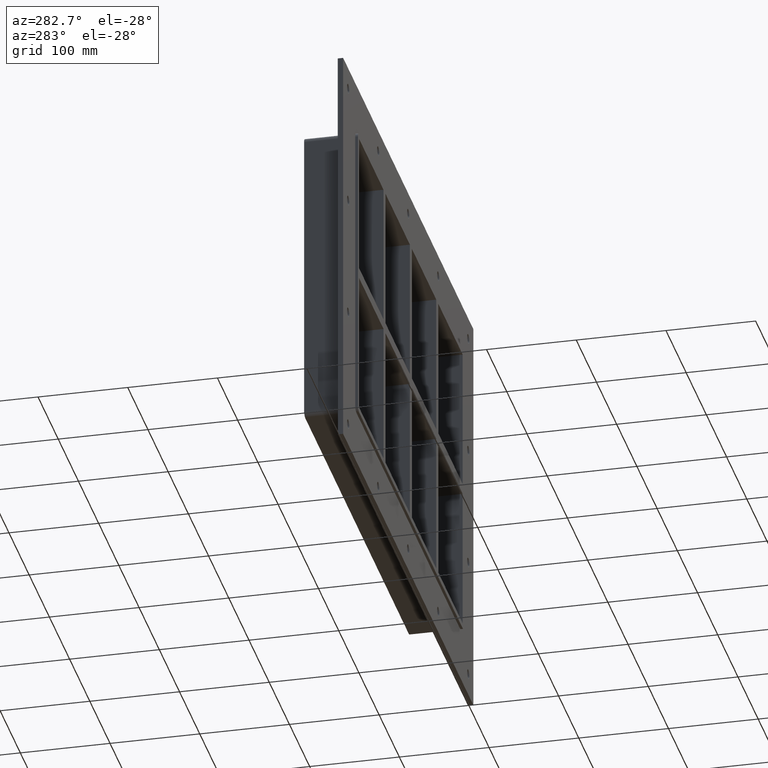
[diagram: clean part render]
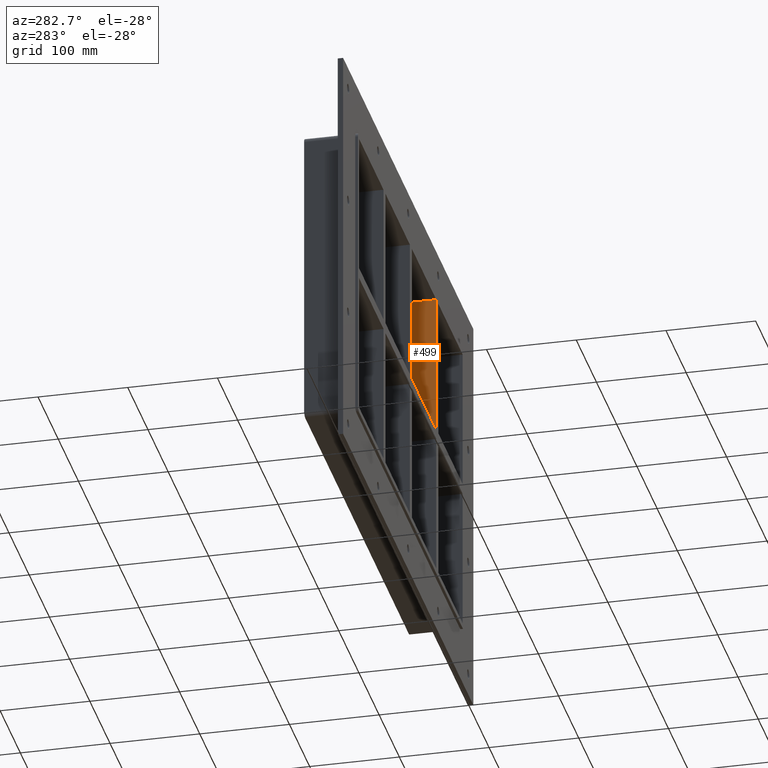
[diagram: same view with one face highlighted and labeled with its STEP entity id]
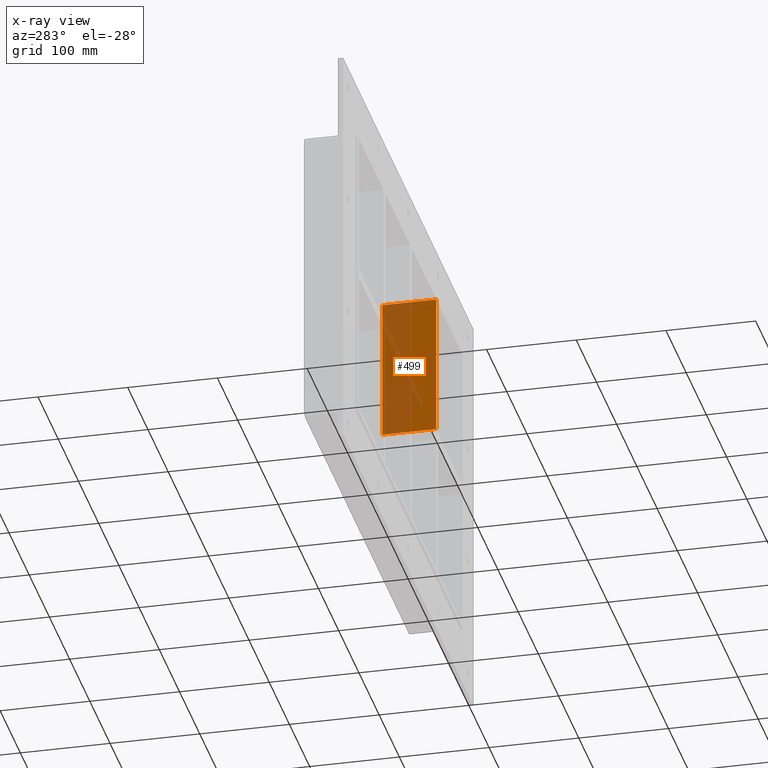
[diagram: x-ray of the same camera — body ghosted, the highlighted face saturated]
A machine part, auxiliary view. The second image highlights one B-rep face of the part: STEP entity #499.
The next image is the same camera in x-ray: the body ghosted, the highlighted face saturated — about 58% of this face is hidden behind the body in this view.
In plain terms, the highlighted planar face has unit normal (-1, 0, 0).
Its self-contained STEP definition (entity closure, byte-faithful):
#460=CARTESIAN_POINT('',(125.49999999999798,-3.0,-165.50000000000006));
#461=DIRECTION('',(-1.0,0.0,0.0));
#462=DIRECTION('',(0.0,0.0,1.0));
#463=AXIS2_PLACEMENT_3D('',#460,#461,#462);
#464=PLANE('',#463);
#465=CARTESIAN_POINT('',(125.49999999999793,-3.0,5.999999999999943));
#466=VERTEX_POINT('',#465);
#467=CARTESIAN_POINT('',(125.49999999999793,57.0,5.999999999999943));
#468=VERTEX_POINT('',#467);
#469=CARTESIAN_POINT('',(125.49999999999795,-3.0,5.999999999999943));
#470=DIRECTION('',(0.0,1.0,0.0));
#471=VECTOR('',#470,60.0);
#472=LINE('',#469,#471);
#473=EDGE_CURVE('',#466,#468,#472,.T.);
#474=ORIENTED_EDGE('',*,*,#473,.F.);
#475=CARTESIAN_POINT('',(125.4999999999979,-3.0,165.50000000000006));
#476=VERTEX_POINT('',#475);
#477=CARTESIAN_POINT('',(125.49999999999794,-3.0,5.999999999999943));
#478=DIRECTION('',(0.0,0.0,1.0));
#479=VECTOR('',#478,159.50000000000011);
#480=LINE('',#477,#479);
#481=EDGE_CURVE('',#466,#476,#480,.T.);
#482=ORIENTED_EDGE('',*,*,#481,.T.);
#483=CARTESIAN_POINT('',(125.4999999999979,57.0,165.50000000000006));
#484=VERTEX_POINT('',#483);
#485=CARTESIAN_POINT('',(125.49999999999791,57.000000000000007,165.5));
#486=DIRECTION('',(0.0,-1.0,0.0));
#487=VECTOR('',#486,60.000000000000007);
#488=LINE('',#485,#487);
#489=EDGE_CURVE('',#484,#476,#488,.T.);
#490=ORIENTED_EDGE('',*,*,#489,.F.);
#491=CARTESIAN_POINT('',(125.49999999999794,57.0,5.999999999999943));
#492=DIRECTION('',(0.0,0.0,1.0));
#493=VECTOR('',#492,159.50000000000011);
#494=LINE('',#491,#493);
#495=EDGE_CURVE('',#468,#484,#494,.T.);
#496=ORIENTED_EDGE('',*,*,#495,.F.);
#497=EDGE_LOOP('',(#474,#482,#490,#496));
#498=FACE_OUTER_BOUND('',#497,.T.);
#499=ADVANCED_FACE('',(#498),#464,.T.);